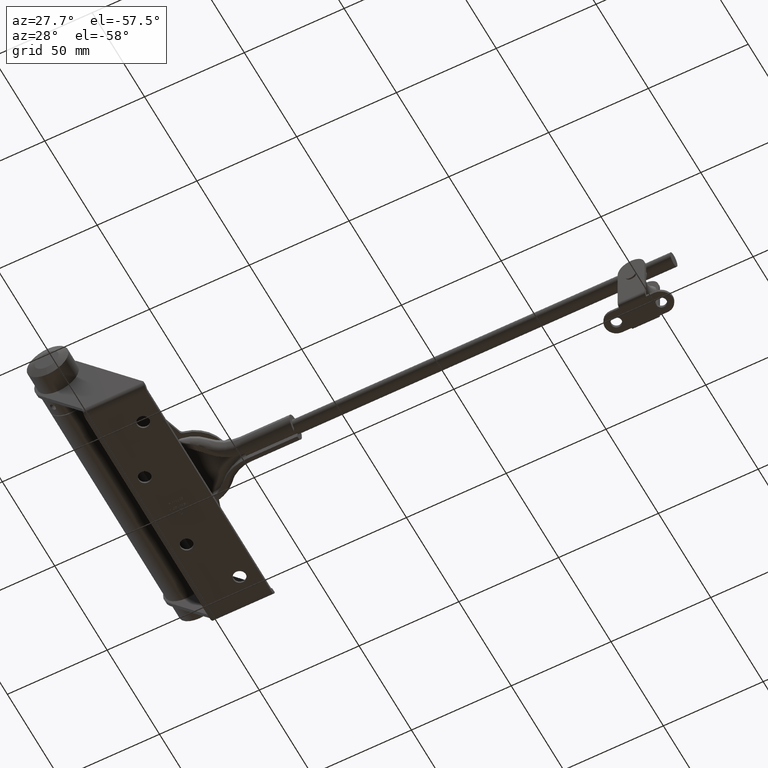
[diagram: clean part render]
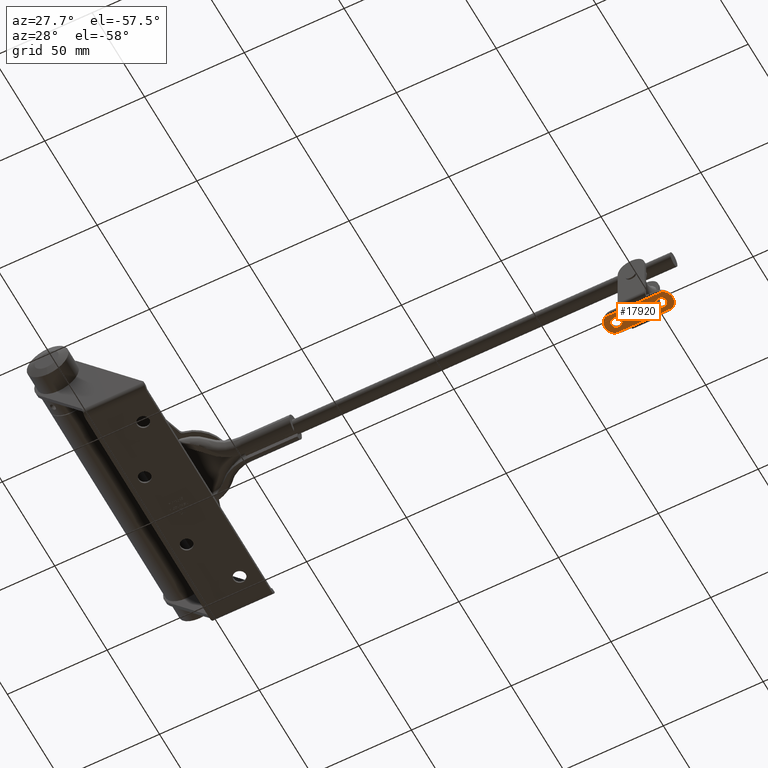
[diagram: same view with one face highlighted and labeled with its STEP entity id]
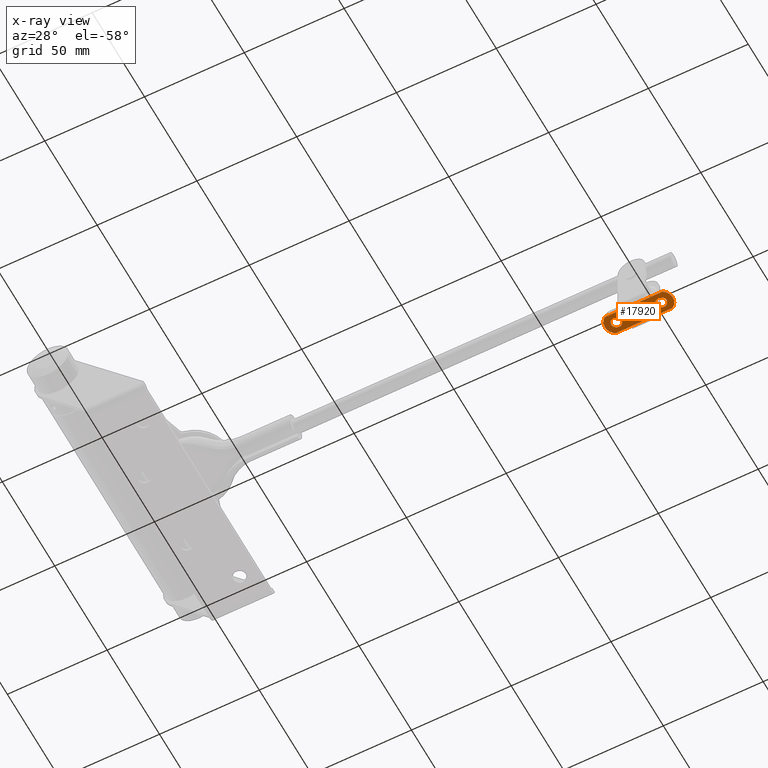
[diagram: x-ray of the same camera — body ghosted, the highlighted face saturated]
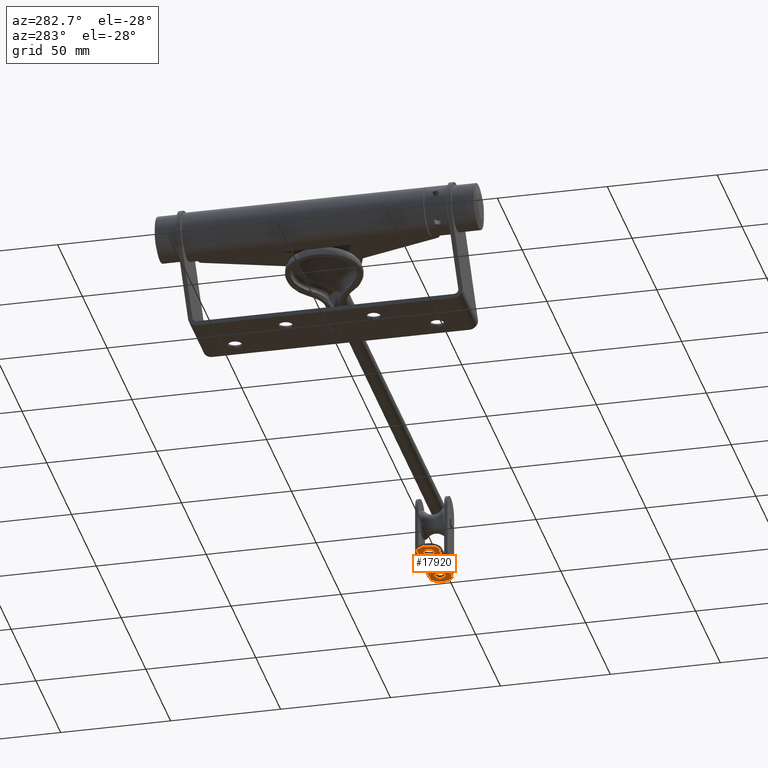
[diagram: same view with one face highlighted and labeled with its STEP entity id]
A machine part, auxiliary view. The second image highlights one B-rep face of the part: STEP entity #17920.
The next image is the same camera in x-ray: the body ghosted, the highlighted face saturated — about 0% of this face is hidden behind the body in this view.
A second angle (auxiliary view) of the same face is appended — the face is thin or edge-on in the first view.
In plain terms, the highlighted planar face has unit normal (0, 0, 1).
Its self-contained STEP definition (entity closure, byte-faithful):
#253 = EDGE_CURVE ( 'NONE', #18157, #1705, #2008, .T. ) ;
#521 = CARTESIAN_POINT ( 'NONE',  ( 4.850000000000005862, 0.000000000000000000, 14.42108544675924087 ) ) ;
#1168 = CARTESIAN_POINT ( 'NONE',  ( -5.377642775528101993E-14, 0.000000000000000000, -11.14999999999999325 ) ) ;
#1493 = DIRECTION ( 'NONE',  ( 0.000000000000000000, 1.000000000000000000, 0.000000000000000000 ) ) ;
#1705 = VERTEX_POINT ( 'NONE', #10922 ) ;
#1802 = EDGE_CURVE ( 'NONE', #15006, #15006, #6300, .T. ) ;
#2008 = CIRCLE ( 'NONE', #12706, 5.850000000000078693 ) ;
#2061 = FACE_OUTER_BOUND ( 'NONE', #9944, .T. ) ;
#2587 = CARTESIAN_POINT ( 'NONE',  ( -5.377642775528101993E-14, 0.000000000000000000, -11.14999999999999325 ) ) ;
#3009 = CARTESIAN_POINT ( 'NONE',  ( 3.728267694569358856E-14, 0.000000000000000000, 13.85000000000001741 ) ) ;
#4260 = CARTESIAN_POINT ( 'NONE',  ( 4.849999999999898392, 0.000000000000000000, -14.42108544675921245 ) ) ;
#5136 = ORIENTED_EDGE ( 'NONE', *, *, #13116, .T. ) ;
#5139 = CARTESIAN_POINT ( 'NONE',  ( 2.862293735361731706E-14, 0.000000000000000000, 11.24999999999998224 ) ) ;
#5677 = CARTESIAN_POINT ( 'NONE',  ( -4.849999999999951683, 0.000000000000000000, 14.42108544675924087 ) ) ;
#6300 = CIRCLE ( 'NONE', #6726, 2.600000000000036504 ) ;
#6534 = AXIS2_PLACEMENT_3D ( 'NONE', #5139, #17835, #19703 ) ;
#6726 = AXIS2_PLACEMENT_3D ( 'NONE', #17921, #7046, #19785 ) ;
#6811 = DIRECTION ( 'NONE',  ( 3.330669073875445955E-15, 0.000000000000000000, 1.000000000000000000 ) ) ;
#7046 = DIRECTION ( 'NONE',  ( 0.000000000000000000, 1.000000000000000000, 0.000000000000000000 ) ) ;
#7974 = ORIENTED_EDGE ( 'NONE', *, *, #22659, .F. ) ;
#8187 = EDGE_CURVE ( 'NONE', #18157, #16170, #9619, .T. ) ;
#8561 = EDGE_LOOP ( 'NONE', ( #5136 ) ) ;
#9619 = LINE ( 'NONE', #19587, #13256 ) ;
#9751 = DIRECTION ( 'NONE',  ( 0.000000000000000000, 1.000000000000000000, 0.000000000000000000 ) ) ;
#9825 = DIRECTION ( 'NONE',  ( -0.000000000000000000, 1.000000000000000000, 0.000000000000000000 ) ) ;
#9944 = EDGE_LOOP ( 'NONE', ( #11896, #12171, #7974, #21829 ) ) ;
#10362 = CIRCLE ( 'NONE', #6534, 2.600000000000034728 ) ;
#10434 = VECTOR ( 'NONE', #10908, 1000.000000000000000 ) ;
#10908 = DIRECTION ( 'NONE',  ( -3.330669073875445561E-15, 0.000000000000000000, -1.000000000000000000 ) ) ;
#10922 = CARTESIAN_POINT ( 'NONE',  ( -4.850000000000054712, 0.000000000000000000, -14.42108544675924087 ) ) ;
#11553 = DIRECTION ( 'NONE',  ( 3.330669073875446350E-15, 0.000000000000000000, 1.000000000000000000 ) ) ;
#11896 = ORIENTED_EDGE ( 'NONE', *, *, #253, .F. ) ;
#12171 = ORIENTED_EDGE ( 'NONE', *, *, #8187, .T. ) ;
#12706 = AXIS2_PLACEMENT_3D ( 'NONE', #1168, #1493, #6811 ) ;
#13116 = EDGE_CURVE ( 'NONE', #16434, #16434, #10362, .T. ) ;
#13256 = VECTOR ( 'NONE', #21336, 1000.000000000000000 ) ;
#13284 = EDGE_CURVE ( 'NONE', #14803, #1705, #14928, .T. ) ;
#13290 = CARTESIAN_POINT ( 'NONE',  ( -4.077987947326272438E-14, 0.000000000000000000, -8.649999999999973710 ) ) ;
#13654 = FACE_BOUND ( 'NONE', #8561, .T. ) ;
#14163 = AXIS2_PLACEMENT_3D ( 'NONE', #20753, #9751, #11553 ) ;
#14803 = VERTEX_POINT ( 'NONE', #5677 ) ;
#14928 = LINE ( 'NONE', #21981, #10434 ) ;
#15006 = VERTEX_POINT ( 'NONE', #13290 ) ;
#15277 = DIRECTION ( 'NONE',  ( 3.330669073875445955E-15, 0.000000000000000000, 1.000000000000000000 ) ) ;
#16170 = VERTEX_POINT ( 'NONE', #521 ) ;
#16434 = VERTEX_POINT ( 'NONE', #3009 ) ;
#17239 = ORIENTED_EDGE ( 'NONE', *, *, #1802, .T. ) ;
#17835 = DIRECTION ( 'NONE',  ( 0.000000000000000000, 1.000000000000000000, 0.000000000000000000 ) ) ;
#17920 = ADVANCED_FACE ( 'NONE', ( #2061, #18553, #13654 ), #18988, .F. ) ;
#17921 = CARTESIAN_POINT ( 'NONE',  ( -4.943961906533900219E-14, 0.000000000000000000, -11.25000000000001066 ) ) ;
#18157 = VERTEX_POINT ( 'NONE', #4260 ) ;
#18553 = FACE_BOUND ( 'NONE', #21196, .T. ) ;
#18988 = PLANE ( 'NONE',  #22245 ) ;
#19587 = CARTESIAN_POINT ( 'NONE',  ( 4.850000000000001421, 0.000000000000000000, -11.14999999999999325 ) ) ;
#19703 = DIRECTION ( 'NONE',  ( 3.330669073875444378E-15, 0.000000000000000000, 1.000000000000000000 ) ) ;
#19785 = DIRECTION ( 'NONE',  ( 3.330669073875444772E-15, 0.000000000000000000, 1.000000000000000000 ) ) ;
#20753 = CARTESIAN_POINT ( 'NONE',  ( 2.602085213965210642E-14, 0.000000000000000000, 11.14999999999999325 ) ) ;
#21196 = EDGE_LOOP ( 'NONE', ( #17239 ) ) ;
#21336 = DIRECTION ( 'NONE',  ( 3.330669073875445561E-15, -0.000000000000000000, 1.000000000000000000 ) ) ;
#21348 = CIRCLE ( 'NONE', #14163, 5.850000000000077804 ) ;
#21829 = ORIENTED_EDGE ( 'NONE', *, *, #13284, .T. ) ;
#21981 = CARTESIAN_POINT ( 'NONE',  ( -4.850000000000055600, 0.000000000000000000, -11.14999999999999325 ) ) ;
#22245 = AXIS2_PLACEMENT_3D ( 'NONE', #2587, #9825, #15277 ) ;
#22659 = EDGE_CURVE ( 'NONE', #14803, #16170, #21348, .T. ) ;